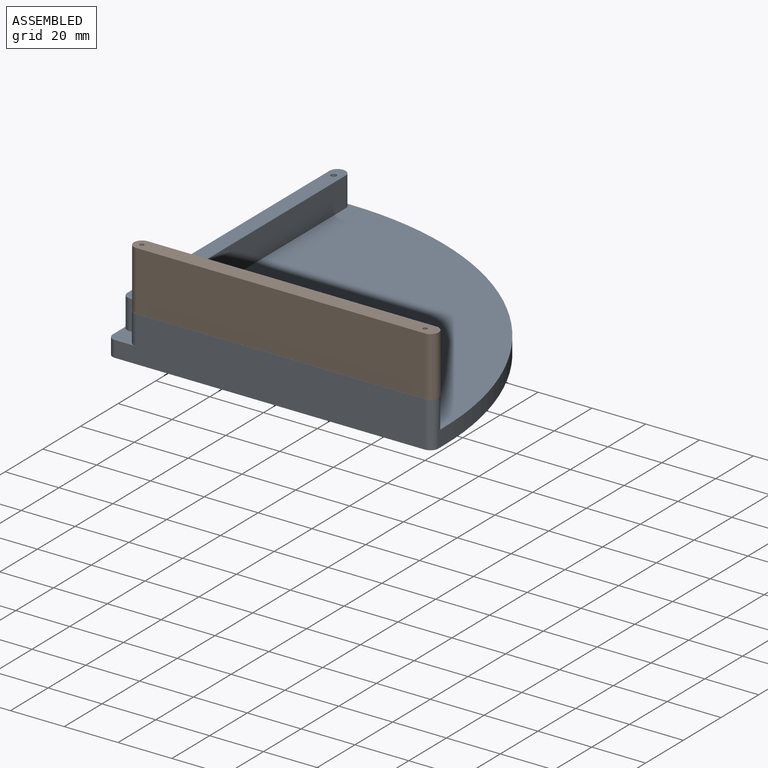
[diagram: assembled view]
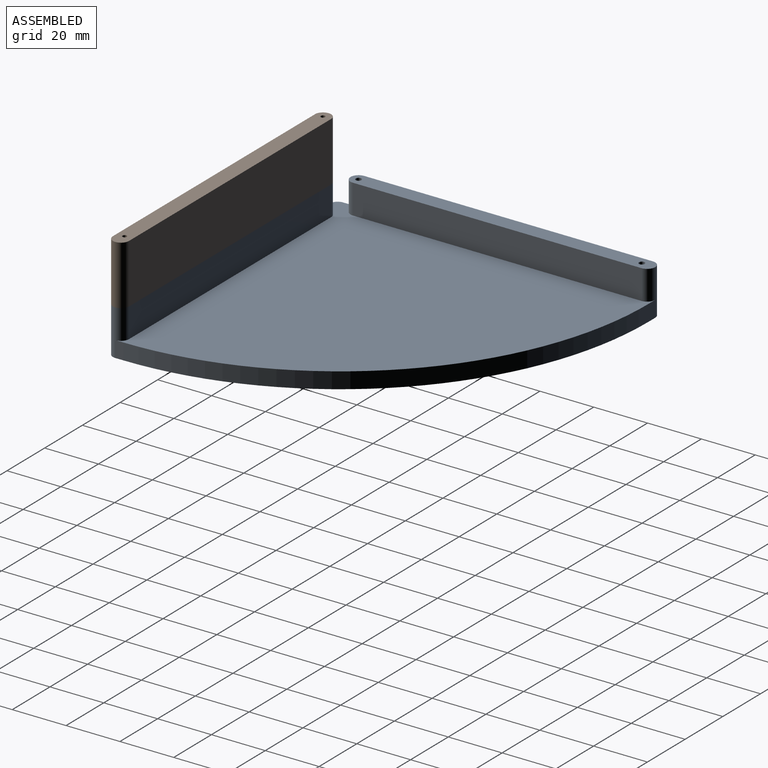
[diagram: assembled view, second angle]
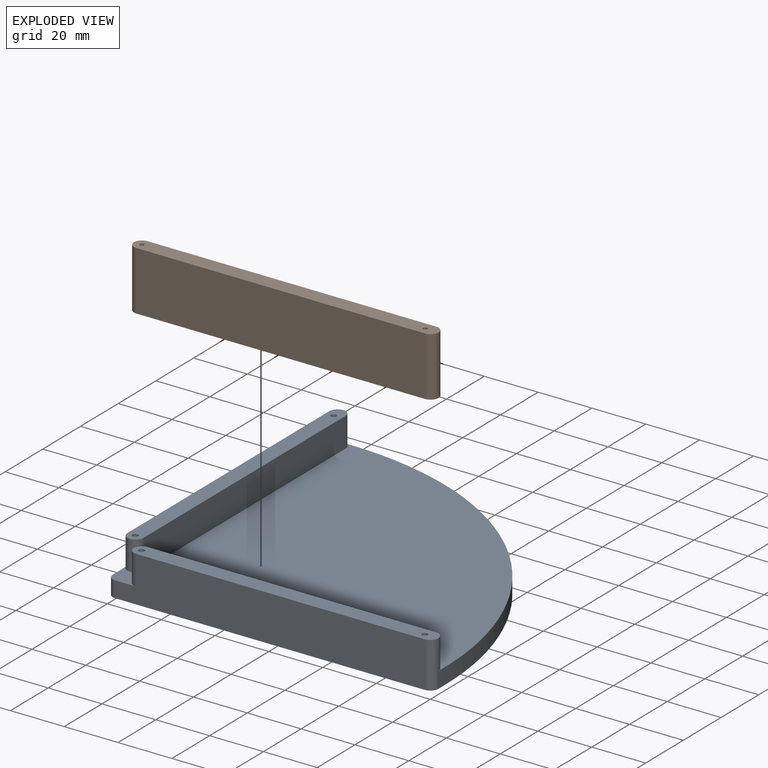
[diagram: exploded view]
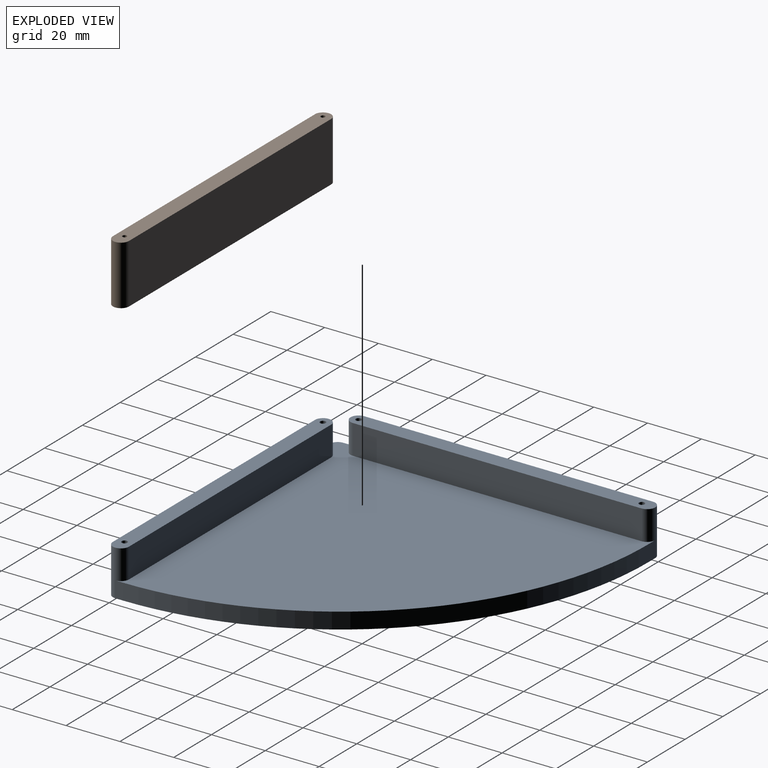
[diagram: exploded view, second angle]
FCSTD DOCUMENT  (FreeCAD 1.1R20251125 (Git shallow))
Label: coffee-filter-holder
License: All rights reserved
LicenseURL: https://en.wikipedia.org/wiki/All_rights_reserved
objects: Path::FeaturePython×14, App::Point×10, Sketcher::SketchObject×9, App::FeaturePython×9, Part::FeaturePython×9, PartDesign::Body×6, App::DocumentObjectGroup×6, PartDesign::Revolution×5, App::Part×3, Part::Feature×2, PartDesign::Pad×2, PartDesign::Pocket×2, App::Link×2, PartDesign::SubShapeBinder×1, Assembly::JointGroup×1, Assembly::AssemblyObject×1
note: 68 computed .brp shape members not serialized (recipe doc carries the construction recipe); baked Part::Feature solids carry a one-line shape summary decoded from their .brp

FEATURE [Part::Feature] Part__Feature  label="spanner"
  Placement = pos=(0,0,40) rot=(0,0,1;0rad)
  shape: bbox 113.2 x 6 x 22 mm, 11 faces (baked)
FEATURE [App::Part] Part  label="Spanner"
  Group = -> [Part__Feature]
  Origin = -> Origin
FEATURE [App::Point] Origin001
  Role = Origin
FEATURE [App::Point] Origin002
  Role = Origin
FEATURE [Part::Feature] Part__Feature001  label="sidewall-right"
  shape: bbox 130.5 x 130.5 x 17 mm, 43 faces (baked)
FEATURE [App::Part] Part001  label="Side Wall Template"
  Group = -> [Part__Feature001]
  Origin = -> Origin003
FEATURE [App::Point] Origin007  label="Origin008"
  Role = Origin
FEATURE [App::Point] Origin009  label="Origin011"
  Role = Origin
FEATURE [PartDesign::SubShapeBinder] Binder
  BindCopyOnChange = 0
  BindMode = 0
  ClaimChildren = false
  Context = -> Part002 [Body.Binder.]
  Fuse = false
  MakeFace = true
  OffsetFill = false
  OffsetIntersection = false
  OffsetJoinType = 0
  OffsetOpenResult = false
  PartialLoad = false
  Refine = true
  Relative = true
  Support = -> [Part001[Part__Feature001.]]
  _Version = 2
FEATURE [Sketcher::SketchObject] Sketch
  ArcFitTolerance = 1e-06
  AttachmentSupport = -> [Origin008]
  ExternalGeometry = -> [Binder]
  ExternalTypes = [0,0,0,0]
  FullyConstrained = true
  MakeInternals = false
  MapMode = 5
  sketch-geometry (4):
    g0: LineSegment StartX=121 StartY=6 StartZ=0 EndX=121 EndY=3 EndZ=0
    g1: LineSegment StartX=3 StartY=0 StartZ=0 EndX=10.7782 EndY=0 EndZ=0
    g2: LineSegment StartX=0 StartY=3 StartZ=0 EndX=0 EndY=10.7782 EndZ=0
    g3: LineSegment StartX=3 StartY=121 StartZ=0 EndX=6 EndY=121 EndZ=0
  constraints (8):
    c: Coincident(g0,g-3)
    c: Coincident(g0,g-11)
    c: Coincident(g1,g-4)
    c: Coincident(g1,g-14)
    c: Coincident(g2,g-4)
    c: Coincident(g2,g-24)
    c: Coincident(g3,g-22)
    c: Coincident(g3,g-3)
FEATURE [PartDesign::Pad] Pad  label="Base Shape"
  Direction = (0,0,1)
  Length = -6
  Length2 = 10
  Profile = -> Sketch
  ReferenceAxis = -> Sketch [N_Axis]
  Refine = true
  SideType = 0
  Suppressed = false
  Type = 0
  Type2 = 0
FEATURE [Sketcher::SketchObject] Sketch001
  ArcFitTolerance = 1e-06
  AttachmentSupport = -> [Pad]
  ExternalGeometry = -> [Binder]
  ExternalTypes = [0,0]
  FullyConstrained = true
  MakeInternals = false
  MapMode = 5
FEATURE [PartDesign::Pad] Pad001  label="Ribs"
  BaseFeature = -> Pad
  Direction = (0,0,1)
  Length = 11
  Length2 = 10
  Profile = -> Sketch001
  ReferenceAxis = -> Sketch001 [N_Axis]
  Refine = true
  SideType = 0
  Suppressed = false
  Type = 0
  Type2 = 0
FEATURE [Sketcher::SketchObject] Sketch002
  ArcFitTolerance = 1e-06
  AttachmentSupport = -> [Pad001]
  ExternalGeometry = -> [Pad001]
  ExternalTypes = [0,0,0,0]
  FullyConstrained = true
  MakeInternals = false
  MapMode = 5
  Placement = pos=(0,0,11) rot=(0,0,1;0rad)
FEATURE [PartDesign::Pocket] Pocket001  label="Through Holes"
  BaseFeature = -> Pad001
  Direction = (0,0,-1)
  Length = 41
  Length2 = 5
  Profile = -> Sketch002
  ReferenceAxis = -> Sketch002 [N_Axis]
  Refine = true
  SideType = 0
  Suppressed = false
  Type = 0
  Type2 = 0
FEATURE [Sketcher::SketchObject] Sketch003
  ArcFitTolerance = 1e-06
  AttachmentSupport = -> [Pocket001]
  ExternalGeometry = -> [Pocket001]
  ExternalTypes = [0,0,0,0]
  FullyConstrained = true
  MakeInternals = false
  MapMode = 5
  Placement = pos=(0,0,-6) rot=(1,0,0;3.14159rad)
  sketch-geometry (4):
    g0: Circle CenterX=116 CenterY=-2.95 CenterZ=0 NormalX=0 NormalY=0 NormalZ=1 AngleXU=0 Radius=1.85
    g1: Circle CenterX=10.75 CenterY=-2.95 CenterZ=0 NormalX=0 NormalY=0 NormalZ=1 AngleXU=0 Radius=1.85
    g2: Circle CenterX=2.95 CenterY=-10.75 CenterZ=0 NormalX=0 NormalY=0 NormalZ=1 AngleXU=0 Radius=1.85
    g3: Circle CenterX=2.95 CenterY=-116 CenterZ=0 NormalX=0 NormalY=0 NormalZ=1 AngleXU=0 Radius=1.85
  constraints (8):
    c: Coincident(g0,g-5)
    c: Coincident(g1,g-8)
    c: Coincident(g2,g-11)
    c: Coincident(g3,g-14)
    c: Equal(g0,g1)
    c: Equal(g3,g2)
    c: Equal(g2,g1)
    c: Diameter(g0) = 3.7
FEATURE [PartDesign::Pocket] Pocket
  BaseFeature = -> Pocket001
  Direction = (0,0,1)
  Length = 2
  Length2 = 5
  Profile = -> Sketch003
  ReferenceAxis = -> Sketch003 [N_Axis]
  Refine = true
  SideType = 0
  Suppressed = false
  Type = 0
  Type2 = 0
FEATURE [PartDesign::Body] Body
  AllowCompound = false
  Group = -> [Sketch,Binder,Pad,Sketch001,Pad001,Sketch002,Pocket001,Sketch003,Pocket]
  Origin = -> Origin008
  Tip = -> Pocket
FEATURE [App::Part] Part002  label="Side Wall"
  Group = -> [Body]
  Origin = -> Origin006
FEATURE [App::Point] Origin011  label="Origin013"
  Role = Origin
FEATURE [App::Link] Spanner  label="Spanner001"
  LinkedObject = -> Part
FEATURE [App::FeaturePython] GroundedJoint  label="GroundedJoint001"  # Assembly grounded joint (typed FeaturePython)
  ObjectToGround = -> Spanner
FEATURE [App::Link] Side_Wall  label="Side Wall001"
  LinkPlacement = pos=(-0.0500095,-0.0499714,-10) rot=(0,0,1;0rad)
  LinkedObject = -> Part002
  Placement = pos=(-0.0500095,-0.0499714,-10) rot=(0,0,1;0rad)
FEATURE [App::FeaturePython] Joint  label="Distance001"  # Assembly joint (typed FeaturePython)
  Angle = 0
  AngleMax = 0
  AngleMin = 0
  Detach1 = false
  Detach2 = false
  Distance = 0
  Distance2 = 0
  EnableAngleMax = false
  EnableAngleMin = false
  EnableLengthMax = false
  EnableLengthMin = false
  JointType = 5 (Distance)
  LengthMax = 0
  LengthMin = 0
  Placement1 = pos=(64.3997,3.00052,11) rot=(0,0,1;0rad)
  Placement2 = pos=(64.3952,3.0003,-39) rot=(0,1,0;3.14159rad)
  Reference1 = -> Assembly [Side_Wall.Body.Face22,Side_Wall.Body.Face22]
  Reference2 = -> Assembly [Spanner.Part__Feature.Face4,Spanner.Part__Feature.Vertex4]
  Suppressed = false
FEATURE [Assembly::JointGroup] Joints
  Group = -> [GroundedJoint,Joint]
FEATURE [Assembly::AssemblyObject] Assembly
  Group = -> [Joints,Spanner,GroundedJoint,Side_Wall,Joint]
  Origin = -> Origin010
  Type = Assembly
FEATURE [App::FeaturePython] SetupSheet  # Path/CAM operation (typed FeaturePython)
  ClearanceHeightExpression = OpStockZMax+SetupSheet.ClearanceHeightOffset
  ClearanceHeightOffset = 5
  CoolantMode = 0
  CoolantModes = None | Flood | Mist
  FinalDepthExpression = OpFinalDepth
  HorizRapid = 0
  SafeHeightExpression = OpStockZMax+SetupSheet.SafeHeightOffset
  SafeHeightOffset = 3
  StartDepthExpression = OpStartDepth
  StepDownExpression = OpToolDiameter
  VertRapid = 0
FEATURE [Part::FeaturePython] Clone  label="Model-Side Wall"  # Draft clone (typed FeaturePython)
  AttacherType = Attacher::AttachEngine3D
  ForceCompound = false
  Fuse = false
  Objects = -> [Part002]
  PathResource = Model
  Placement = pos=(0,7e-16,-12) rot=(0,0,1;0rad)
  Scale = (1,1,1)
FEATURE [App::DocumentObjectGroup] Model
  Group = -> [Clone]
FEATURE [App::FeaturePython] PropertyBag001  label="Attributes001"  # WARN: FeaturePython — macro-defined, semantics opaque (R4)
  CustomPropertyGroups = 0
  CuttingEdgeHeight = 25
  Diameter = 3.175
  Flutes = 4
  Length = 45
  ShankDiameter = 3.175
FEATURE [Sketcher::SketchObject] Sketch005
  ArcFitTolerance = 0
  AttachmentSupport = -> [XZ_Plane007]
  ExternalTypes = [0]
  FullyConstrained = true
  MakeInternals = false
  MapMode = 5
  Placement = pos=(0,0,0) rot=(1,0,0;1.5708rad)
  expr: Constraints[10] = <<Attributes001>>.Length
  expr: Constraints[16] = <<Attributes001>>.ShankDiameter
  expr: Constraints[18] = <<Attributes001>>.CuttingEdgeHeight
  expr: Constraints[9] = <<Attributes001>>.Diameter
  sketch-geometry (8):
    g0: LineSegment StartX=0 StartY=45 StartZ=0 EndX=0 EndY=0 EndZ=0
    g1: LineSegment StartX=0 StartY=0 StartZ=0 EndX=1.5875 EndY=0 EndZ=0
    g2: LineSegment StartX=1.5875 StartY=0 StartZ=0 EndX=1.5875 EndY=25 EndZ=0
    g3: LineSegment StartX=1.5875 StartY=45 StartZ=0 EndX=0 EndY=45 EndZ=0
    g4: LineSegment [constr] StartX=1.5875 StartY=0 StartZ=0 EndX=-1.5875 EndY=0 EndZ=0
    g5: LineSegment StartX=1.5875 StartY=24.99 StartZ=0 EndX=1.5875 EndY=25 EndZ=0
    g6: LineSegment StartX=1.5875 StartY=45 StartZ=0 EndX=1.5875 EndY=24.99 EndZ=0
    g7: LineSegment [constr] StartX=-1.5875 StartY=45 StartZ=0 EndX=1.5875 EndY=45 EndZ=0
  constraints (21):
    c: Vertical(g0)
    c: Coincident(g0,g1)
    c: Horizontal(g1)
    c: Coincident(g1,g2)
    c: Vertical(g2)
    c: Horizontal(g3)
    c: Coincident(g0,g3)
    c: Coincident(g4,g1)
    c: Symmetric(g1,g4,g0)
    c: DistanceX(g4,g4) = 3.175
    c: DistanceY(g2,g3) = 45
    c: Coincident(g2,g5)
    c: Vertical(g6)
    c: Coincident(g3,g6)
    c: Symmetric(g7,g7,g0)
    c: Coincident(g7,g3)
    c: DistanceX(g7,g7) = 3.175
    c: Coincident(g5,g6)
    c: DistanceY(g2) = 25
    c: Coincident(g0,g-1)
    c: DistanceY(g5,g2) = 0.01
FEATURE [PartDesign::Revolution] Revolution001
  AllowMultiFace = false
  Angle = 360
  Angle2 = 60
  Axis = (0,2e-16,1)
  Base = (0,0,0)
  Placement = pos=(0,0,0) rot=(1,0,0;1.5708rad)
  Profile = -> Sketch005
  ReferenceAxis = -> Sketch005 [V_Axis]
  Reversed = true
  Suppressed = false
  Type = 0
FEATURE [App::Point] Origin014  label="Origin017"
  Role = Origin
FEATURE [PartDesign::Body] Body002  label="Endmill002"
  AllowCompound = false
  Group = -> [Sketch005,Revolution001,PropertyBag001]
  Origin = -> Origin015
  Tip = -> Revolution001
FEATURE [Part::FeaturePython] _3_175mm_Endmill  label="3.175mm Endmill"  # WARN: FeaturePython — macro-defined, semantics opaque (R4)
  BitBody = -> Body002
  Chipload = 0
  CuttingEdgeHeight = 25
  Diameter = 3.175
  Flutes = 4
  Length = 45
  Material = 0
  ShankDiameter = 3.175
  ShapeID = endmill
  ShapeType = 6
  SpindleDirection = 0
  ToolBitID = 3.175mm_Endmill
FEATURE [Path::FeaturePython] _3_175mm_Endmill001  label="3.175mm Endmill001"  # Path/CAM operation (typed FeaturePython)
  HorizFeed = 5
  HorizRapid = 0
  SpindleDir = 0
  SpindleSpeed = 0
  Tool = -> _3_175mm_Endmill
  ToolNumber = 2
  VertFeed = 25
  VertRapid = 0
  expr: HorizRapid = SetupSheet.HorizRapid
  expr: VertRapid = SetupSheet.VertRapid
FEATURE [App::DocumentObjectGroup] Tools
  Group = -> [_3_175mm_Endmill001]
FEATURE [Path::FeaturePython] MillFace  label="Face - Ribs"  # Path/CAM operation (typed FeaturePython)
  Active = true
  AreaParams:
    Tolerance = 1e-07
    FitArcs = True
    Simplify = False
    CleanDistance = 0.0
    Accuracy = 0.01
    Unit = 1.0
    MinArcPoints = 4
    MaxArcPoints = 100
    ClipperScale = 10000000.0
    Fill = 0
    Coplanar = 0
    Reorient = True
    Outline = False
    Explode = False
    OpenMode = 0
    Deflection = 0.01
    SubjectFill = 0
    ClipFill = 0
    Offset = 0.0
    ExtraPass = 0
    Stepover = 0.0
    LastStepover = 0.0
    JoinType = 0
    EndType = 0
    MiterLimit = 2.0
    RoundPrecision = 0.0
    PocketMode = 1
    ToolRadius = 1.5875
    PocketExtraOffset = 0.0
    PocketStepover = 1.5875
    PocketLastStepover = 0.0
    FromCenter = True
    Angle = 45.0
    AngleShift = 0.0
    Shift = 0.0
    Thicken = False
    SectionCount = -1
    Stepdown = 1.0
    SectionOffset = 0.0
    SectionTolerance = 1e-06
    SectionMode = 2
    Project = False
  Base = -> [Clone]
  BoundaryShape = 1
  ClearEdges = true
  ClearanceHeight = 5
  ClearingPattern = 0
  CoolantMode = 0
  CutMode = 0
  CycleTime = 00:04:03
  ExcludeRaisedAreas = false
  ExtraOffset = 0
  FinalDepth = -1
  FinishDepth = 0
  KeepToolDown = false
  MinTravel = true
  OpFinalDepth = -1
  OpStartDepth = 0
  OpStockZMax = 0
  OpStockZMin = -18.5
  OpToolDiameter = 3.175
  PathParams = {'orientation': 1, 'feedrate': 5.0, 'feedrate_v': 25.0, 'verbose': True, 'resume_height': 3.0, 'retraction': 5.0, 'return_end': True, 'preamble': False}
  PocketLastStepOver = 0
  SafeHeight = 3
  SplitArcs = false
  StartAt = 0
  StartDepth = 0
  StartPoint = (0,0,0)
  StepDown = 3.175
  StepOver = 50
  ToolController = -> _3_175mm_Endmill001
  UseRestMachining = true
  UseStartPoint = false
  ZigZagAngle = 45
  expr: ClearanceHeight = OpStockZMax + SetupSheet.ClearanceHeightOffset
  expr: FinalDepth = OpFinalDepth
  expr: SafeHeight = OpStockZMax + SetupSheet.SafeHeightOffset
  expr: StartDepth = OpStartDepth
  expr: StepDown = OpToolDiameter
FEATURE [Path::FeaturePython] Adaptive  label="Adaptive - Main Pocket Clear"  # Path/CAM operation (typed FeaturePython)
  Active = true
  Base = -> [Clone]
  ClearanceHeight = 5
  CoolantMode = 0
  CycleTime = 11:01:39
  ExtensionCorners = true
  ExtensionLengthDefault = 1.5875
  FinalDepth = -12
  FinishDepth = 0.2
  FinishingProfile = true
  ForceInsideOut = false
  HelixAngle = 5
  HelixConeAngle = 0
  HelixDiameterLimit = 0
  KeepToolDownRatio = 3
  LiftDistance = 0
  ModelAwareExperiment = false
  OpFinalDepth = -12
  OpStartDepth = 0
  OpStockZMax = 0
  OpStockZMin = -18.5
  OpToolDiameter = 3.175
  OperationType = 0
  OrderCutsByRegion = false
  SafeHeight = 3
  Side = 1
  StartDepth = 0
  StepDown = 1
  StepOver = 30
  StockToLeave = 0
  StopProcessing = false
  Stopped = false
  Tolerance = 0.1
  ToolController = -> _3_175mm_Endmill001
  UseHelixArcs = false
  UseOutline = true
  ZStockToLeave = 0
  expr: ClearanceHeight = OpStockZMax + SetupSheet.ClearanceHeightOffset
  expr: ExtensionLengthDefault = OpToolDiameter / 2
  expr: FinalDepth = OpFinalDepth
  expr: SafeHeight = OpStockZMax + SetupSheet.SafeHeightOffset
  expr: StartDepth = OpStartDepth
  expr: StepDown = 1 mm
FEATURE [App::DocumentObjectGroup] Operations
  Group = -> [MillFace,Adaptive]
FEATURE [App::FeaturePython] SetupSheet001  label="SetupSheet002"  # Path/CAM operation (typed FeaturePython)
  ClearanceHeightExpression = OpStockZMax+SetupSheet001.ClearanceHeightOffset
  ClearanceHeightOffset = 5
  CoolantMode = 0
  CoolantModes = None | Flood | Mist
  FinalDepthExpression = OpFinalDepth
  HorizRapid = 0
  SafeHeightExpression = OpStockZMax+SetupSheet001.SafeHeightOffset
  SafeHeightOffset = 3
  StartDepthExpression = OpStartDepth
  StepDownExpression = OpToolDiameter
  VertRapid = 0
FEATURE [Part::FeaturePython] Clone001  label="Model-Model-Side Wall"  # Draft clone (typed FeaturePython)
  AttacherType = Attacher::AttachEngine3D
  ForceCompound = false
  Fuse = false
  Objects = -> [Clone]
  PathResource = Model
  Placement = pos=(-1,1,-7) rot=(0,1,0;3.14159rad)
  Scale = (1,1,1)
FEATURE [App::DocumentObjectGroup] Model001
  Group = -> [Clone001]
FEATURE [Part::FeaturePython] Stock002  label="Stock003"  # WARN: FeaturePython — macro-defined, semantics opaque (R4)
  Base = -> Model001
  ExtXneg = 10
  ExtXpos = 1
  ExtYneg = 1
  ExtYpos = 10
  ExtZneg = 1
  ExtZpos = 1
  Placement = pos=(-122,1,-18) rot=(0,0,1;0rad)
  StockType = FromBase
FEATURE [App::FeaturePython] PropertyBag002  label="Attributes004"  # WARN: FeaturePython — macro-defined, semantics opaque (R4)
  CustomPropertyGroups = 0
  CuttingEdgeHeight = 25
  Diameter = 3.175
  Flutes = 4
  Length = 45
  ShankDiameter = 3.175
FEATURE [Sketcher::SketchObject] Sketch009
  ArcFitTolerance = 0
  AttachmentSupport = -> [XZ_Plane011]
  ExternalTypes = [0]
  FullyConstrained = true
  MakeInternals = false
  MapMode = 5
  Placement = pos=(0,0,0) rot=(1,0,0;1.5708rad)
  expr: Constraints[10] = <<Attributes004>>.Length
  expr: Constraints[16] = <<Attributes004>>.ShankDiameter
  expr: Constraints[18] = <<Attributes004>>.CuttingEdgeHeight
  expr: Constraints[9] = <<Attributes004>>.Diameter
  sketch-geometry (8):
    g0: LineSegment StartX=0 StartY=45 StartZ=0 EndX=0 EndY=0 EndZ=0
    g1: LineSegment StartX=0 StartY=0 StartZ=0 EndX=1.5875 EndY=0 EndZ=0
    g2: LineSegment StartX=1.5875 StartY=0 StartZ=0 EndX=1.5875 EndY=25 EndZ=0
    g3: LineSegment StartX=1.5875 StartY=45 StartZ=0 EndX=0 EndY=45 EndZ=0
    g4: LineSegment [constr] StartX=1.5875 StartY=0 StartZ=0 EndX=-1.5875 EndY=0 EndZ=0
    g5: LineSegment StartX=1.5875 StartY=24.99 StartZ=0 EndX=1.5875 EndY=25 EndZ=0
    g6: LineSegment StartX=1.5875 StartY=45 StartZ=0 EndX=1.5875 EndY=24.99 EndZ=0
    g7: LineSegment [constr] StartX=-1.5875 StartY=45 StartZ=0 EndX=1.5875 EndY=45 EndZ=0
  constraints (21):
    c: Vertical(g0)
    c: Coincident(g0,g1)
    c: Horizontal(g1)
    c: Coincident(g1,g2)
    c: Vertical(g2)
    c: Horizontal(g3)
    c: Coincident(g0,g3)
    c: Coincident(g4,g1)
    c: Symmetric(g1,g4,g0)
    c: DistanceX(g4,g4) = 3.175
    c: DistanceY(g2,g3) = 45
    c: Coincident(g2,g5)
    c: Vertical(g6)
    c: Coincident(g3,g6)
    c: Symmetric(g7,g7,g0)
    c: Coincident(g7,g3)
    c: DistanceX(g7,g7) = 3.175
    c: Coincident(g5,g6)
    c: DistanceY(g2) = 25
    c: Coincident(g0,g-1)
    c: DistanceY(g5,g2) = 0.01
FEATURE [PartDesign::Revolution] Revolution002
  AllowMultiFace = false
  Angle = 360
  Angle2 = 60
  Axis = (0,2e-16,1)
  Base = (0,0,0)
  Placement = pos=(0,0,0) rot=(1,0,0;1.5708rad)
  Profile = -> Sketch009
  ReferenceAxis = -> Sketch009 [V_Axis]
  Reversed = true
  Suppressed = false
  Type = 0
FEATURE [App::Point] Origin022  label="Origin024"
  Role = Origin
FEATURE [PartDesign::Body] Body006  label="Endmill003"
  AllowCompound = false
  Group = -> [Sketch009,Revolution002,PropertyBag002]
  Origin = -> Origin023
  Tip = -> Revolution002
FEATURE [Part::FeaturePython] _3_175mm_Endmill002  label="3.175mm Endmill004"  # WARN: FeaturePython — macro-defined, semantics opaque (R4)
  BitBody = -> Body006
  Chipload = 0
  CuttingEdgeHeight = 25
  Diameter = 3.175
  Flutes = 4
  Length = 45
  Material = 0
  Placement = pos=(-121.393,19.3605,-0.5) rot=(0,0,1;0rad)
  ShankDiameter = 3.175
  ShapeID = endmill
  ShapeType = 6
  SpindleDirection = 0
  ToolBitID = 3.175mm_Endmill
FEATURE [Path::FeaturePython] _3_175mm_Endmill004  label="3.175mm Endmill005"  # Path/CAM operation (typed FeaturePython)
  HorizFeed = 0
  HorizRapid = 0
  SpindleDir = 0
  SpindleSpeed = 0
  Tool = -> _3_175mm_Endmill002
  ToolNumber = 1
  VertFeed = 0
  VertRapid = 0
  expr: HorizRapid = SetupSheet001.HorizRapid
  expr: VertRapid = SetupSheet001.VertRapid
FEATURE [App::FeaturePython] PropertyBag  label="Attributes005"  # WARN: FeaturePython — macro-defined, semantics opaque (R4)
  CustomPropertyGroups = 0
  Diameter = 3
  Flutes = 0
  Length = 50
  TipAngle = 119
FEATURE [Sketcher::SketchObject] Sketch010
  ArcFitTolerance = 0
  AttachmentSupport = -> [XZ_Plane012]
  ExternalTypes = [0]
  FullyConstrained = true
  MakeInternals = false
  MapMode = 5
  Placement = pos=(0,0,0) rot=(1,0,0;1.5708rad)
  expr: Constraints[13] = <<Attributes005>>.TipAngle
  expr: Constraints[14] = <<Attributes005>>.Diameter
  expr: Constraints[15] = <<Attributes005>>.Length
  sketch-geometry (7):
    g0: LineSegment StartX=0 StartY=50 StartZ=0 EndX=0 EndY=0 EndZ=0
    g1: LineSegment StartX=0 StartY=0 StartZ=0 EndX=1.5 EndY=0.883568 EndZ=0
    g2: LineSegment StartX=1.5 StartY=0.883568 StartZ=0 EndX=1.5 EndY=50 EndZ=0
    g3: LineSegment StartX=1.5 StartY=50 StartZ=0 EndX=0 EndY=50 EndZ=0
    g4: LineSegment [constr] StartX=1.5 StartY=0.883568 StartZ=0 EndX=-1.5 EndY=0.883568 EndZ=0
    g5: LineSegment [constr] StartX=-1.5 StartY=0.883568 StartZ=0 EndX=0 EndY=0 EndZ=0
    g6: LineSegment [constr] StartX=0 StartY=0 StartZ=0 EndX=1.5 EndY=0.883568 EndZ=0
  constraints (17):
    c: Vertical(g0)
    c: Coincident(g0,g1)
    c: Coincident(g1,g2)
    c: Vertical(g2)
    c: Coincident(g2,g3)
    c: Horizontal(g3)
    c: Coincident(g0,g3)
    c: Coincident(g4,g5)
    c: Coincident(g5,g6)
    c: Coincident(g6,g4)
    c: Coincident(g1,g4)
    c: Coincident(g5,g0)
    c: Symmetric(g4,g1,g0)
    c: Angle(g1,g5) = 2.07694
    c: DistanceX(g4,g4) = 3
    c: DistanceY(g0,g0) = 50
    c: Coincident(g0,g-1)
FEATURE [PartDesign::Revolution] Revolution
  AllowMultiFace = false
  Angle = 360
  Angle2 = 60
  Axis = (0,2e-16,1)
  Base = (0,0,0)
  Placement = pos=(0,0,0) rot=(1,0,0;1.5708rad)
  Profile = -> Sketch010
  ReferenceAxis = -> Sketch010 [V_Axis]
  Reversed = true
  Suppressed = false
  Type = 0
FEATURE [App::Point] Origin024  label="Origin026"
  Role = Origin
FEATURE [PartDesign::Body] Body007  label="Drill"
  AllowCompound = false
  Group = -> [Sketch010,Revolution,PropertyBag]
  Origin = -> Origin025
  Tip = -> Revolution
FEATURE [Part::FeaturePython] _2mm_drill  label="2mm-drill"  # WARN: FeaturePython — macro-defined, semantics opaque (R4)
  BitBody = -> Body007
  Chipload = 0
  Diameter = 3
  Flutes = 0
  Length = 50
  Material = 0
  ShapeID = drill
  ShapeType = 5
  SpindleDirection = 0
  TipAngle = 119
  ToolBitID = 2mm-drill
FEATURE [Path::FeaturePython] _2mm_drill001  label="2mm-drill003"  # Path/CAM operation (typed FeaturePython)
  HorizFeed = 0
  HorizRapid = 0
  SpindleDir = 0
  SpindleSpeed = 0
  Tool = -> _2mm_drill
  ToolNumber = 2
  VertFeed = 0
  VertRapid = 0
  expr: HorizRapid = SetupSheet001.HorizRapid
  expr: VertRapid = SetupSheet001.VertRapid
FEATURE [App::FeaturePython] PropertyBag003  label="Attributes"  # WARN: FeaturePython — macro-defined, semantics opaque (R4)
  CustomPropertyGroups = 0
  CuttingEdgeHeight = 14
  Diameter = 2
  Flutes = 2
  Length = 35
  ShankDiameter = 6
FEATURE [Sketcher::SketchObject] Sketch011
  ArcFitTolerance = 0
  AttachmentSupport = -> [XZ_Plane013]
  ExternalTypes = [0]
  FullyConstrained = true
  MakeInternals = false
  MapMode = 5
  Placement = pos=(0,0,0) rot=(1,0,0;1.5708rad)
  expr: Constraints[10] = <<Attributes>>.Length
  expr: Constraints[16] = <<Attributes>>.ShankDiameter
  expr: Constraints[18] = <<Attributes>>.CuttingEdgeHeight
  expr: Constraints[9] = <<Attributes>>.Diameter
  sketch-geometry (8):
    g0: LineSegment StartX=0 StartY=35 StartZ=0 EndX=0 EndY=0 EndZ=0
    g1: LineSegment StartX=0 StartY=0 StartZ=0 EndX=1 EndY=0 EndZ=0
    g2: LineSegment StartX=1 StartY=0 StartZ=0 EndX=1 EndY=14 EndZ=0
    g3: LineSegment StartX=3 StartY=35 StartZ=0 EndX=0 EndY=35 EndZ=0
    g4: LineSegment [constr] StartX=1 StartY=0 StartZ=0 EndX=-1 EndY=0 EndZ=0
    g5: LineSegment StartX=3 StartY=13.99 StartZ=0 EndX=1 EndY=14 EndZ=0
    g6: LineSegment StartX=3 StartY=35 StartZ=0 EndX=3 EndY=13.99 EndZ=0
    g7: LineSegment [constr] StartX=-3 StartY=35 StartZ=0 EndX=3 EndY=35 EndZ=0
  constraints (21):
    c: Vertical(g0)
    c: Coincident(g0,g1)
    c: Horizontal(g1)
    c: Coincident(g1,g2)
    c: Vertical(g2)
    c: Horizontal(g3)
    c: Coincident(g0,g3)
    c: Coincident(g4,g1)
    c: Symmetric(g1,g4,g0)
    c: DistanceX(g4,g4) = 2
    c: DistanceY(g2,g3) = 35
    c: Coincident(g2,g5)
    c: Vertical(g6)
    c: Coincident(g3,g6)
    c: Symmetric(g7,g7,g0)
    c: Coincident(g7,g3)
    c: DistanceX(g7,g7) = 6
    c: Coincident(g5,g6)
    c: DistanceY(g2) = 14
    c: Coincident(g0,g-1)
    c: DistanceY(g5,g2) = 0.01
FEATURE [PartDesign::Revolution] Revolution003
  AllowMultiFace = false
  Angle = 360
  Angle2 = 60
  Axis = (0,2e-16,1)
  Base = (0,0,0)
  Placement = pos=(0,0,0) rot=(1,0,0;1.5708rad)
  Profile = -> Sketch011
  ReferenceAxis = -> Sketch011 [V_Axis]
  Reversed = true
  Suppressed = false
  Type = 0
FEATURE [App::Point] Origin026  label="Origin028"
  Role = Origin
FEATURE [PartDesign::Body] Body008  label="Endmill"
  AllowCompound = false
  Group = -> [Sketch011,Revolution003,PropertyBag003]
  Origin = -> Origin027
  Tip = -> Revolution003
FEATURE [Part::FeaturePython] _2mm_endmill  label="2mm-endmill"  # WARN: FeaturePython — macro-defined, semantics opaque (R4)
  BitBody = -> Body008
  Chipload = 0.6
  CuttingEdgeHeight = 14
  Diameter = 2
  Flutes = 2
  Length = 35
  Material = 0
  ShankDiameter = 6
  ShapeID = endmill
  ShapeType = 6
  SpindleDirection = 0
  ToolBitID = 2mm-endmill
FEATURE [Path::FeaturePython] _2mm_endmill001  label="2mm-endmill001"  # Path/CAM operation (typed FeaturePython)
  HorizFeed = 0
  HorizRapid = 0
  SpindleDir = 0
  SpindleSpeed = 0
  Tool = -> _2mm_endmill
  ToolNumber = 3
  VertFeed = 0
  VertRapid = 0
  expr: HorizRapid = SetupSheet001.HorizRapid
  expr: VertRapid = SetupSheet001.VertRapid
FEATURE [Path::FeaturePython] MillFace001  label="Mill-Face"  # Path/CAM operation (typed FeaturePython)
  Active = true
  AreaParams:
    Tolerance = 1e-07
    FitArcs = True
    Simplify = False
    CleanDistance = 0.0
    Accuracy = 0.01
    Unit = 1.0
    MinArcPoints = 4
    MaxArcPoints = 100
    ClipperScale = 10000000.0
    Fill = 0
    Coplanar = 0
    Reorient = True
    Outline = False
    Explode = False
    OpenMode = 0
    Deflection = 0.01
    SubjectFill = 0
    ClipFill = 0
    Offset = 0.0
    ExtraPass = 0
    Stepover = 0.0
    LastStepover = 0.0
    JoinType = 0
    EndType = 0
    MiterLimit = 2.0
    RoundPrecision = 0.0
    PocketMode = 1
    ToolRadius = 1.5875
    PocketExtraOffset = 0.0
    PocketStepover = 1.5875
    PocketLastStepover = 0.0
    FromCenter = True
    Angle = 45.0
    AngleShift = 0.0
    Shift = 0.0
    Thicken = False
    SectionCount = -1
    Stepdown = 1.0
    SectionOffset = 0.0
    SectionTolerance = 1e-06
    SectionMode = 2
    Project = False
  Base = -> [Clone001]
  BoundaryShape = 1
  ClearEdges = true
  ClearanceHeight = 5
  ClearingPattern = 0
  CoolantMode = 0
  CutMode = 0
  CycleTime = Tool Feedrate Error
  ExcludeRaisedAreas = false
  ExtraOffset = 0
  FinalDepth = -1
  FinishDepth = 0.2
  KeepToolDown = false
  MinTravel = false
  OpFinalDepth = -1
  OpStartDepth = 0
  OpStockZMax = -1.42e-14
  OpStockZMin = -19
  OpToolDiameter = 3.175
  PathParams = {'orientation': 1, 'feedrate': 0.0, 'feedrate_v': 0.0, 'verbose': True, 'resume_height': 2.999999999999986, 'retraction': 4.999999999999986, 'return_end': True, 'preamble': False}
  PocketLastStepOver = 0
  SafeHeight = 3
  SplitArcs = false
  StartAt = 0
  StartDepth = 0
  StartPoint = (0,0,0)
  StepDown = 0.5
  StepOver = 50
  ToolController = -> _3_175mm_Endmill004
  UseRestMachining = true
  UseStartPoint = false
  ZigZagAngle = 45
  expr: ClearanceHeight = OpStockZMax + SetupSheet001.ClearanceHeightOffset
  expr: FinalDepth = OpFinalDepth
  expr: SafeHeight = OpStockZMax + SetupSheet001.SafeHeightOffset
  expr: StartDepth = OpStartDepth
  expr: StepDown = 0.5
FEATURE [Path::FeaturePython] Adaptive001  label="Adaptive-Profile"  # Path/CAM operation (typed FeaturePython)
  Active = true
  Base = -> [Clone001]
  ClearanceHeight = 5
  CoolantMode = 0
  CycleTime = Tool Feedrate Error
  ExtensionCorners = true
  ExtensionLengthDefault = 1.5875
  FinalDepth = -19.1
  FinishDepth = 0
  FinishingProfile = false
  ForceInsideOut = false
  HelixAngle = 5
  HelixConeAngle = 0
  HelixDiameterLimit = 0
  KeepToolDownRatio = 3
  LiftDistance = 0
  ModelAwareExperiment = false
  OpFinalDepth = -1
  OpStartDepth = 0
  OpStockZMax = -1.42e-14
  OpStockZMin = -19
  OpToolDiameter = 3.175
  OperationType = 1
  OrderCutsByRegion = false
  SafeHeight = 3
  Side = 0
  StartDepth = 0
  StepDown = 1
  StepOver = 20
  StockToLeave = 0.25
  StopProcessing = false
  Stopped = false
  Tolerance = 0.1
  ToolController = -> _3_175mm_Endmill004
  UseHelixArcs = false
  UseOutline = false
  ZStockToLeave = 0
  expr: ClearanceHeight = OpStockZMax + SetupSheet001.ClearanceHeightOffset
  expr: ExtensionLengthDefault = OpToolDiameter / 2
  expr: FinalDepth = -19.1
  expr: SafeHeight = OpStockZMax + SetupSheet001.SafeHeightOffset
  expr: StartDepth = OpStartDepth
  expr: StepDown = 1 mm
FEATURE [Path::FeaturePython] Profile  label="Profile-Finish"  # Path/CAM operation (typed FeaturePython)
  Active = true
  AreaParams:
    Tolerance = 1e-07
    FitArcs = True
    Simplify = False
    CleanDistance = 0.0
    Accuracy = 0.01
    Unit = 1.0
    MinArcPoints = 4
    MaxArcPoints = 100
    ClipperScale = 10000000.0
    Fill = 0
    Coplanar = 0
    Reorient = True
    Outline = False
    Explode = False
    OpenMode = 0
    Deflection = 0.01
    SubjectFill = 0
    ClipFill = 0
    Offset = 1.5875
    ExtraPass = 0
    Stepover = -0.0
    LastStepover = 0.0
    JoinType = 0
    EndType = 0
    MiterLimit = 2.0
    RoundPrecision = 0.0
    PocketMode = 0
    ToolRadius = 1.0
    PocketExtraOffset = 0.0
    PocketStepover = 0.0
    PocketLastStepover = 0.0
    FromCenter = False
    Angle = 45.0
    AngleShift = 0.0
    Shift = 0.0
    Thicken = False
    SectionCount = -1
    Stepdown = 1.0
    SectionOffset = 0.0
    SectionTolerance = 1e-06
    SectionMode = 2
    Project = False
  Base = -> [Clone001]
  ClearanceHeight = 5
  CoolantMode = 0
  CycleTime = Tool Feedrate Error
  Direction = 0
  FinalDepth = -19.1
  HandleMultipleFeatures = 0
  JoinType = 0
  MiterLimit = 0.1
  NumPasses = 2
  OffsetExtra = 0
  OpFinalDepth = -1
  OpStartDepth = 0
  OpStockZMax = -1.42e-14
  OpStockZMin = -19
  OpToolDiameter = 3.175
  PathParams:
    orientation = 1
    sort_mode = 0
    feedrate = 0.0
    feedrate_v = 0.0
    verbose = True
    resume_height = 2.999999999999986
    retraction = 4.999999999999986
    return_end = True
    preamble = False
  SafeHeight = 3
  Side = 0
  SplitArcs = false
  StartDepth = 0
  StartPoint = (0,0,0)
  StepDown = 1
  Stepover = 0
  ToolController = -> _3_175mm_Endmill004
  UseComp = true
  UseStartPoint = false
  processCircles = false
  processHoles = false
  processPerimeter = true
  expr: ClearanceHeight = OpStockZMax + SetupSheet001.ClearanceHeightOffset
  expr: FinalDepth = -19.1
  expr: SafeHeight = OpStockZMax + SetupSheet001.SafeHeightOffset
  expr: StartDepth = OpStartDepth
  expr: StepDown = 1
FEATURE [Path::FeaturePython] Drilling  label="Drilling-2mm-drill"  # Path/CAM operation (typed FeaturePython)
  Active = true
  AddTipLength = false
  Base = -> [Clone001]
  ClearanceHeight = 5
  CoolantMode = 0
  CycleTime = Tool Feedrate Error
  DwellEnabled = false
  DwellTime = 0.5
  ExtraOffset = 1
  FinalDepth = -19
  KeepToolDown = false
  OpFinalDepth = -3
  OpStartDepth = 0
  OpStockZMax = 0
  OpStockZMin = -19
  OpToolDiameter = 3
  PeckDepth = 2.25
  PeckEnabled = true
  RetractHeight = 3
  RetractMode = 0
  SafeHeight = 3
  StartDepth = 0
  ToolController = -> _2mm_drill001
  chipBreakEnabled = false
  feedRetractEnabled = false
  expr: ClearanceHeight = OpStockZMax + SetupSheet001.ClearanceHeightOffset
  expr: FinalDepth = -19
  expr: PeckDepth = OpToolDiameter * 0.75
  expr: RetractHeight = StartDepth + SetupSheet.SafeHeightOffset
  expr: SafeHeight = OpStockZMax + SetupSheet001.SafeHeightOffset
  expr: StartDepth = OpStartDepth
FEATURE [App::FeaturePython] PropertyBag004  label="Attributes006"  # WARN: FeaturePython — macro-defined, semantics opaque (R4)
  CustomPropertyGroups = 0
  CuttingEdgeHeight = 5
  Diameter = 1
  Flutes = 2
  Length = 38
  ShankDiameter = 3.17
FEATURE [Sketcher::SketchObject] Sketch012
  ArcFitTolerance = 0
  AttachmentSupport = -> [XZ_Plane014]
  ExternalTypes = [0]
  FullyConstrained = true
  MakeInternals = false
  MapMode = 5
  Placement = pos=(0,0,0) rot=(1,0,0;1.5708rad)
  expr: Constraints[10] = <<Attributes006>>.Length
  expr: Constraints[16] = <<Attributes006>>.ShankDiameter
  expr: Constraints[18] = <<Attributes006>>.CuttingEdgeHeight
  expr: Constraints[9] = <<Attributes006>>.Diameter
  sketch-geometry (8):
    g0: LineSegment StartX=0 StartY=38 StartZ=0 EndX=0 EndY=0 EndZ=0
    g1: LineSegment StartX=0 StartY=0 StartZ=0 EndX=0.5 EndY=0 EndZ=0
    g2: LineSegment StartX=0.5 StartY=0 StartZ=0 EndX=0.5 EndY=5 EndZ=0
    g3: LineSegment StartX=1.585 StartY=38 StartZ=0 EndX=0 EndY=38 EndZ=0
    g4: LineSegment [constr] StartX=0.5 StartY=0 StartZ=0 EndX=-0.5 EndY=0 EndZ=0
    g5: LineSegment StartX=1.585 StartY=4.99 StartZ=0 EndX=0.5 EndY=5 EndZ=0
    g6: LineSegment StartX=1.585 StartY=38 StartZ=0 EndX=1.585 EndY=4.99 EndZ=0
    g7: LineSegment [constr] StartX=-1.585 StartY=38 StartZ=0 EndX=1.585 EndY=38 EndZ=0
  constraints (21):
    c: Vertical(g0)
    c: Coincident(g0,g1)
    c: Horizontal(g1)
    c: Coincident(g1,g2)
    c: Vertical(g2)
    c: Horizontal(g3)
    c: Coincident(g0,g3)
    c: Coincident(g4,g1)
    c: Symmetric(g1,g4,g0)
    c: DistanceX(g4,g4) = 1
    c: DistanceY(g2,g3) = 38
    c: Coincident(g2,g5)
    c: Vertical(g6)
    c: Coincident(g3,g6)
    c: Symmetric(g7,g7,g0)
    c: Coincident(g7,g3)
    c: DistanceX(g7,g7) = 3.17
    c: Coincident(g5,g6)
    c: DistanceY(g2) = 5
    c: Coincident(g0,g-1)
    c: DistanceY(g5,g2) = 0.01
FEATURE [PartDesign::Revolution] Revolution004
  AllowMultiFace = false
  Angle = 360
  Angle2 = 60
  Axis = (0,2e-16,1)
  Base = (0,0,0)
  Placement = pos=(0,0,0) rot=(1,0,0;1.5708rad)
  Profile = -> Sketch012
  ReferenceAxis = -> Sketch012 [V_Axis]
  Reversed = true
  Suppressed = false
  Type = 0
FEATURE [App::Point] Origin028  label="Origin030"
  Role = Origin
FEATURE [PartDesign::Body] Body009  label="Endmill004"
  AllowCompound = false
  Group = -> [Sketch012,Revolution004,PropertyBag004]
  Origin = -> Origin029
  Tip = -> Revolution004
FEATURE [Part::FeaturePython] _1_0mm_End_Mill__PN_57_  label="1.0mm End Mill (PN 57)"  # WARN: FeaturePython — macro-defined, semantics opaque (R4)
  BitBody = -> Body009
  Chipload = 0
  CuttingEdgeHeight = 5
  Diameter = 1
  Flutes = 2
  Length = 38
  Material = 0
  ShankDiameter = 3.17
  ShapeID = endmill
  ShapeType = 6
  SpindleDirection = 0
  ToolBitID = a0aa9b30-c322-43e3-a153-4cfdf17ba31a
FEATURE [Path::FeaturePython] _1_0mm_End_Mill__PN_57_001  label="1.0mm End Mill (PN 57)001"  # Path/CAM operation (typed FeaturePython)
  HorizFeed = 0
  HorizRapid = 0
  SpindleDir = 0
  SpindleSpeed = 0
  Tool = -> _1_0mm_End_Mill__PN_57_
  ToolNumber = 4
  VertFeed = 0
  VertRapid = 0
  expr: HorizRapid = SetupSheet001.HorizRapid
  expr: VertRapid = SetupSheet001.VertRapid
FEATURE [App::DocumentObjectGroup] Tools001
  Group = -> [_3_175mm_Endmill004,_2mm_drill001,_2mm_endmill001,_1_0mm_End_Mill__PN_57_001]
FEATURE [Path::FeaturePython] Helix  label="Counterbore-1mm-endmill"  # Path/CAM operation (typed FeaturePython)
  Active = true
  Base = -> [Clone001]
  ClearanceHeight = 5
  CoolantMode = 0
  CutMode = 0
  CycleTime = Tool Feedrate Error
  Direction = 1
  FinalDepth = -3
  OffsetExtra = 0
  OpFinalDepth = -3
  OpStartDepth = 0
  OpStockZMax = -1.42e-14
  OpStockZMin = -19
  OpToolDiameter = 1
  SafeHeight = 3
  StartDepth = 0
  StartRadius = 0
  StartSide = 1
  StepDown = 0.5
  StepOver = 50
  ToolController = -> _1_0mm_End_Mill__PN_57_001
  expr: ClearanceHeight = OpStockZMax + SetupSheet001.ClearanceHeightOffset
  expr: FinalDepth = OpFinalDepth
  expr: SafeHeight = OpStockZMax + SetupSheet001.SafeHeightOffset
  expr: StartDepth = OpStartDepth
  expr: StepDown = 0.5
FEATURE [App::DocumentObjectGroup] Operations001
  Group = -> [MillFace001,Adaptive001,Profile,Drilling,Helix]
FEATURE [Path::FeaturePython] Job001  label="Side 1"  # Path/CAM operation (typed FeaturePython)
  CycleTime = 00:00:00
  Description = Flat side of body	
  Fixtures = G54
  GeometryTolerance = 0.01
  JobType = 0
  Model = -> Model001
  Operations = -> Operations001
  OrderOutputBy = 1
  PostProcessor = 12
  PostProcessorArgs = --translate_drill
  PostProcessorOutputFile = L:<userpath>/Projects/Coffee-Filter-Holder/cam-output/side-1.nc
  SetupSheet = -> SetupSheet001
  SplitOutput = true
  Stock = -> Stock002
  Tools = -> Tools001
FEATURE [Part::FeaturePython] Stock003  label="Stock004"  # WARN: FeaturePython — macro-defined, semantics opaque (R4)
  Base = -> Model
  ExtXneg = 0
  ExtXpos = 0
  ExtYneg = 0
  ExtYpos = 0
  ExtZneg = 0.5
  ExtZpos = 1
  Placement = pos=(0,0,-18) rot=(0,0,1;0rad)
  StockType = FromBase
FEATURE [Path::FeaturePython] Job  label="Side 2"  # Path/CAM operation (typed FeaturePython)
  CycleTime = 11:05:42
  Fixtures = G54
  GeometryTolerance = 0.01
  Group = -> [Job001]
  JobType = 0
  Model = -> Model
  Operations = -> Operations
  OrderOutputBy = 0
  PostProcessor = 12
  PostProcessorOutputFile = L:<userpath>/Projects/Coffee-Filter-Holder/cam-output/side-2.nc
  SetupSheet = -> SetupSheet
  SplitOutput = false
  Stock = -> Stock003
  Tools = -> Tools
